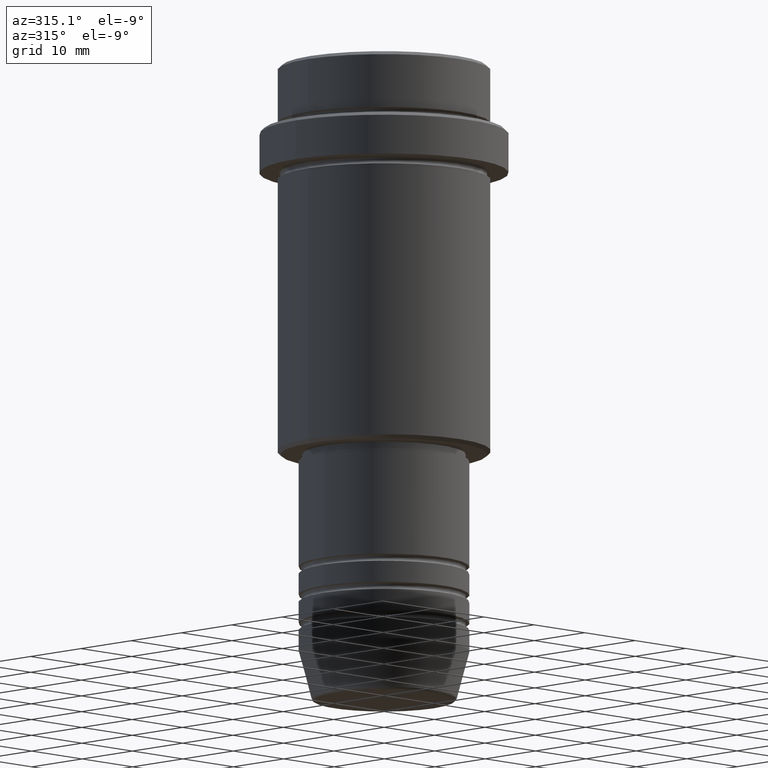
[diagram: clean part render]
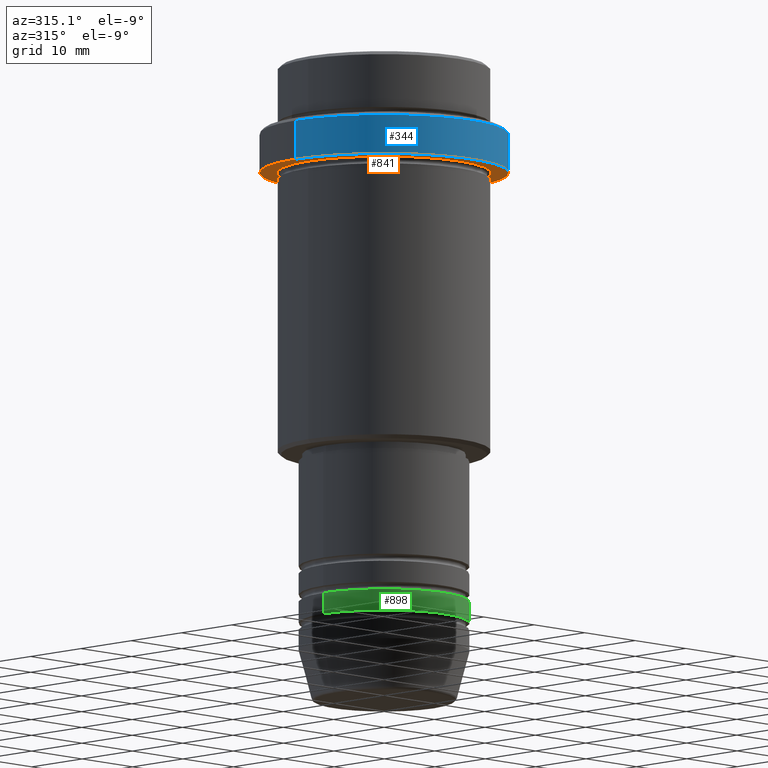
[diagram: same view with three faces highlighted in distinct colors, each labeled with its STEP entity id]
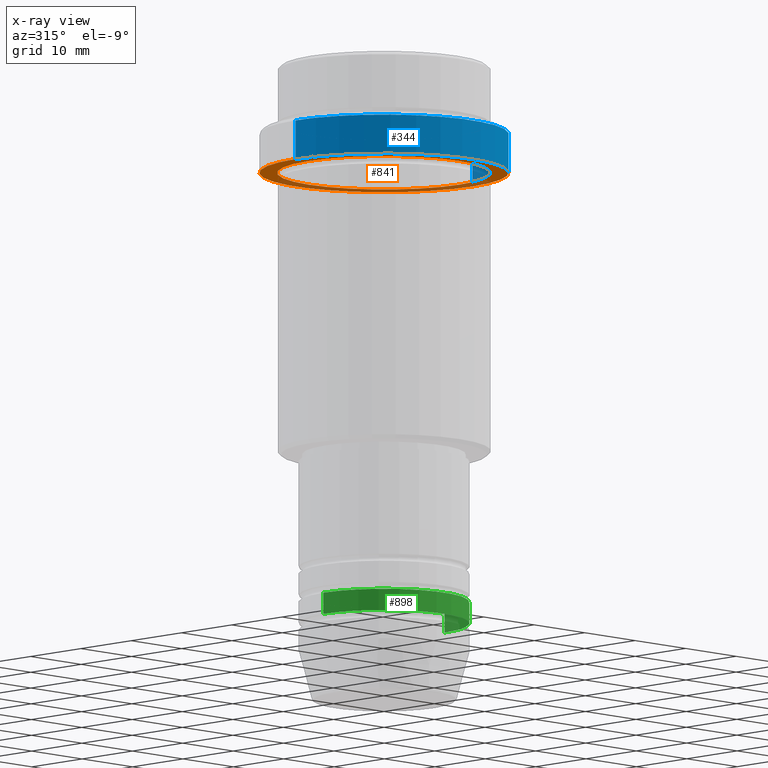
[diagram: x-ray of the same camera — body ghosted, the three highlighted faces saturated]
A machine part, auxiliary view with three faces highlighted in distinct colors.
The next image is the same camera in x-ray (body ghosted, the three faces saturated) — at least one of them is partly hidden behind the body in this view.
Their STEP definitions:

[orange] entity #841 — the highlighted planar face has unit normal (0, 0, -1).
#25 = ORIENTED_EDGE ( 'NONE', *, *, #409, .T. ) ;
#68 = DIRECTION ( 'NONE',  ( -0.000000000000000000, -0.000000000000000000, 1.000000000000000000 ) ) ;
#75 = DIRECTION ( 'NONE',  ( -0.000000000000000000, -0.000000000000000000, 1.000000000000000000 ) ) ;
#138 = FACE_BOUND ( 'NONE', #996, .T. ) ;
#200 = DIRECTION ( 'NONE',  ( -1.000000000000000000, 0.000000000000000000, 0.000000000000000000 ) ) ;
#219 = AXIS2_PLACEMENT_3D ( 'NONE', #352, #238, #661 ) ;
#224 = CIRCLE ( 'NONE', #564, 17.50000000000000000 ) ;
#238 = DIRECTION ( 'NONE',  ( 0.000000000000000000, 0.000000000000000000, -1.000000000000000000 ) ) ;
#352 = CARTESIAN_POINT ( 'NONE',  ( 0.000000000000000000, 17.50000000000000000, -15.00000000000000000 ) ) ;
#409 = EDGE_CURVE ( 'NONE', #426, #599, #1405, .T. ) ;
#412 = AXIS2_PLACEMENT_3D ( 'NONE', #493, #68, #503 ) ;
#426 = VERTEX_POINT ( 'NONE', #943 ) ;
#474 = CARTESIAN_POINT ( 'NONE',  ( -17.50000000000000000, 2.143131898507868248E-15, -15.00000000000000000 ) ) ;
#482 = DIRECTION ( 'NONE',  ( 1.000000000000000000, 0.000000000000000000, 0.000000000000000000 ) ) ;
#493 = CARTESIAN_POINT ( 'NONE',  ( 0.000000000000000000, 0.000000000000000000, -15.00000000000000000 ) ) ;
#503 = DIRECTION ( 'NONE',  ( -1.000000000000000000, 0.000000000000000000, 0.000000000000000000 ) ) ;
#517 = AXIS2_PLACEMENT_3D ( 'NONE', #1055, #75, #200 ) ;
#530 = ORIENTED_EDGE ( 'NONE', *, *, #1001, .T. ) ;
#533 = ORIENTED_EDGE ( 'NONE', *, *, #696, .F. ) ;
#564 = AXIS2_PLACEMENT_3D ( 'NONE', #803, #687, #917 ) ;
#573 = CARTESIAN_POINT ( 'NONE',  ( 17.50000000000000000, 0.000000000000000000, -15.00000000000000000 ) ) ;
#593 = CARTESIAN_POINT ( 'NONE',  ( 0.000000000000000000, 0.000000000000000000, -15.00000000000000000 ) ) ;
#599 = VERTEX_POINT ( 'NONE', #616 ) ;
#616 = CARTESIAN_POINT ( 'NONE',  ( 14.99999999999999467, 1.836970198721029194E-15, -15.00000000000000000 ) ) ;
#661 = DIRECTION ( 'NONE',  ( -1.000000000000000000, 0.000000000000000000, -0.000000000000000000 ) ) ;
#683 = EDGE_CURVE ( 'NONE', #986, #976, #1184, .T. ) ;
#687 = DIRECTION ( 'NONE',  ( -0.000000000000000000, -0.000000000000000000, 1.000000000000000000 ) ) ;
#696 = EDGE_CURVE ( 'NONE', #976, #986, #224, .T. ) ;
#768 = FACE_OUTER_BOUND ( 'NONE', #871, .T. ) ;
#803 = CARTESIAN_POINT ( 'NONE',  ( 0.000000000000000000, 0.000000000000000000, -15.00000000000000000 ) ) ;
#841 = ADVANCED_FACE ( 'NONE', ( #138, #768 ), #886, .T. ) ;
#871 = EDGE_LOOP ( 'NONE', ( #533, #1120 ) ) ;
#886 = PLANE ( 'NONE',  #219 ) ;
#917 = DIRECTION ( 'NONE',  ( 1.000000000000000000, 0.000000000000000000, 0.000000000000000000 ) ) ;
#943 = CARTESIAN_POINT ( 'NONE',  ( -14.99999999999999467, 0.000000000000000000, -15.00000000000000000 ) ) ;
#951 = CIRCLE ( 'NONE', #412, 14.99999999999999467 ) ;
#976 = VERTEX_POINT ( 'NONE', #573 ) ;
#986 = VERTEX_POINT ( 'NONE', #474 ) ;
#996 = EDGE_LOOP ( 'NONE', ( #25, #530 ) ) ;
#1001 = EDGE_CURVE ( 'NONE', #599, #426, #951, .T. ) ;
#1033 = DIRECTION ( 'NONE',  ( -0.000000000000000000, -0.000000000000000000, 1.000000000000000000 ) ) ;
#1055 = CARTESIAN_POINT ( 'NONE',  ( 0.000000000000000000, 0.000000000000000000, -15.00000000000000000 ) ) ;
#1120 = ORIENTED_EDGE ( 'NONE', *, *, #683, .F. ) ;
#1184 = CIRCLE ( 'NONE', #1361, 17.50000000000000000 ) ;
#1361 = AXIS2_PLACEMENT_3D ( 'NONE', #593, #1033, #482 ) ;
#1405 = CIRCLE ( 'NONE', #517, 14.99999999999999467 ) ;

[blue] entity #344 — the highlighted cylindrical surface (partial cylindrical patch) has radius 17.5 mm, axis along (-0, -0, 1).
#65 = FACE_OUTER_BOUND ( 'NONE', #1310, .T. ) ;
#123 = CARTESIAN_POINT ( 'NONE',  ( -17.50000000000000000, 2.143131898507868248E-15, 0.000000000000000000 ) ) ;
#246 = AXIS2_PLACEMENT_3D ( 'NONE', #701, #918, #489 ) ;
#274 = DIRECTION ( 'NONE',  ( -0.000000000000000000, -0.000000000000000000, 1.000000000000000000 ) ) ;
#321 = VERTEX_POINT ( 'NONE', #1023 ) ;
#344 = ADVANCED_FACE ( 'NONE', ( #65 ), #355, .T. ) ;
#355 = CYLINDRICAL_SURFACE ( 'NONE', #603, 17.50000000000000000 ) ;
#474 = CARTESIAN_POINT ( 'NONE',  ( -17.50000000000000000, 2.143131898507868248E-15, -15.00000000000000000 ) ) ;
#482 = DIRECTION ( 'NONE',  ( 1.000000000000000000, 0.000000000000000000, 0.000000000000000000 ) ) ;
#489 = DIRECTION ( 'NONE',  ( 1.000000000000000000, 0.000000000000000000, 0.000000000000000000 ) ) ;
#501 = CARTESIAN_POINT ( 'NONE',  ( 0.000000000000000000, 0.000000000000000000, 0.000000000000000000 ) ) ;
#573 = CARTESIAN_POINT ( 'NONE',  ( 17.50000000000000000, 0.000000000000000000, -15.00000000000000000 ) ) ;
#593 = CARTESIAN_POINT ( 'NONE',  ( 0.000000000000000000, 0.000000000000000000, -15.00000000000000000 ) ) ;
#603 = AXIS2_PLACEMENT_3D ( 'NONE', #501, #274, #676 ) ;
#609 = DIRECTION ( 'NONE',  ( -0.000000000000000000, -0.000000000000000000, 1.000000000000000000 ) ) ;
#676 = DIRECTION ( 'NONE',  ( 1.000000000000000000, 0.000000000000000000, 0.000000000000000000 ) ) ;
#683 = EDGE_CURVE ( 'NONE', #986, #976, #1184, .T. ) ;
#701 = CARTESIAN_POINT ( 'NONE',  ( 0.000000000000000000, 0.000000000000000000, -9.499999999999971578 ) ) ;
#716 = LINE ( 'NONE', #797, #832 ) ;
#780 = LINE ( 'NONE', #123, #1337 ) ;
#797 = CARTESIAN_POINT ( 'NONE',  ( 17.50000000000000000, 0.000000000000000000, 0.000000000000000000 ) ) ;
#832 = VECTOR ( 'NONE', #609, 1000.000000000000000 ) ;
#843 = ORIENTED_EDGE ( 'NONE', *, *, #1117, .T. ) ;
#918 = DIRECTION ( 'NONE',  ( 0.000000000000000000, 0.000000000000000000, -1.000000000000000000 ) ) ;
#957 = ORIENTED_EDGE ( 'NONE', *, *, #683, .T. ) ;
#976 = VERTEX_POINT ( 'NONE', #573 ) ;
#986 = VERTEX_POINT ( 'NONE', #474 ) ;
#1023 = CARTESIAN_POINT ( 'NONE',  ( 17.50000000000000000, 0.000000000000000000, -9.499999999999971578 ) ) ;
#1033 = DIRECTION ( 'NONE',  ( -0.000000000000000000, -0.000000000000000000, 1.000000000000000000 ) ) ;
#1047 = CIRCLE ( 'NONE', #246, 17.50000000000000000 ) ;
#1117 = EDGE_CURVE ( 'NONE', #976, #321, #716, .T. ) ;
#1166 = ORIENTED_EDGE ( 'NONE', *, *, #1268, .F. ) ;
#1184 = CIRCLE ( 'NONE', #1361, 17.50000000000000000 ) ;
#1267 = VERTEX_POINT ( 'NONE', #1331 ) ;
#1268 = EDGE_CURVE ( 'NONE', #986, #1267, #780, .T. ) ;
#1310 = EDGE_LOOP ( 'NONE', ( #1166, #957, #843, #1365 ) ) ;
#1320 = DIRECTION ( 'NONE',  ( -0.000000000000000000, -0.000000000000000000, 1.000000000000000000 ) ) ;
#1331 = CARTESIAN_POINT ( 'NONE',  ( -17.50000000000000000, 2.143131898507868248E-15, -9.499999999999971578 ) ) ;
#1337 = VECTOR ( 'NONE', #1320, 1000.000000000000000 ) ;
#1361 = AXIS2_PLACEMENT_3D ( 'NONE', #593, #1033, #482 ) ;
#1365 = ORIENTED_EDGE ( 'NONE', *, *, #1372, .T. ) ;
#1372 = EDGE_CURVE ( 'NONE', #321, #1267, #1047, .T. ) ;

[green] entity #898 — the highlighted cylindrical surface (partial cylindrical patch) has radius 12 mm, axis along (-0, -0, 1).
#8 = CIRCLE ( 'NONE', #1316, 12.00000000000000000 ) ;
#34 = CIRCLE ( 'NONE', #337, 12.00000000000000000 ) ;
#52 = CARTESIAN_POINT ( 'NONE',  ( 12.00000000000000000, 0.000000000000000000, 0.000000000000000000 ) ) ;
#56 = DIRECTION ( 'NONE',  ( -0.000000000000000000, -0.000000000000000000, 1.000000000000000000 ) ) ;
#135 = EDGE_CURVE ( 'NONE', #1161, #242, #1050, .T. ) ;
#239 = EDGE_CURVE ( 'NONE', #752, #242, #8, .T. ) ;
#242 = VERTEX_POINT ( 'NONE', #522 ) ;
#245 = VECTOR ( 'NONE', #961, 1000.000000000000000 ) ;
#286 = EDGE_CURVE ( 'NONE', #846, #1161, #34, .T. ) ;
#337 = AXIS2_PLACEMENT_3D ( 'NONE', #814, #364, #1013 ) ;
#343 = CYLINDRICAL_SURFACE ( 'NONE', #619, 12.00000000000000000 ) ;
#364 = DIRECTION ( 'NONE',  ( -0.000000000000000000, -0.000000000000000000, 1.000000000000000000 ) ) ;
#390 = EDGE_CURVE ( 'NONE', #846, #752, #741, .T. ) ;
#466 = CARTESIAN_POINT ( 'NONE',  ( 0.000000000000000000, 0.000000000000000000, 0.000000000000000000 ) ) ;
#510 = CARTESIAN_POINT ( 'NONE',  ( 12.00000000000000000, 0.000000000000000000, -78.99999999999990052 ) ) ;
#522 = CARTESIAN_POINT ( 'NONE',  ( 12.00000000000000000, 0.000000000000000000, -75.99999999999990052 ) ) ;
#619 = AXIS2_PLACEMENT_3D ( 'NONE', #466, #1326, #775 ) ;
#631 = CARTESIAN_POINT ( 'NONE',  ( -12.00000000000000000, 1.469576158976823947E-15, 0.000000000000000000 ) ) ;
#730 = DIRECTION ( 'NONE',  ( -0.000000000000000000, -0.000000000000000000, 1.000000000000000000 ) ) ;
#741 = LINE ( 'NONE', #631, #245 ) ;
#752 = VERTEX_POINT ( 'NONE', #1258 ) ;
#775 = DIRECTION ( 'NONE',  ( 1.000000000000000000, 0.000000000000000000, 0.000000000000000000 ) ) ;
#814 = CARTESIAN_POINT ( 'NONE',  ( 0.000000000000000000, 0.000000000000000000, -78.99999999999990052 ) ) ;
#846 = VERTEX_POINT ( 'NONE', #1329 ) ;
#889 = FACE_OUTER_BOUND ( 'NONE', #1192, .T. ) ;
#898 = ADVANCED_FACE ( 'NONE', ( #889 ), #343, .T. ) ;
#961 = DIRECTION ( 'NONE',  ( -0.000000000000000000, -0.000000000000000000, 1.000000000000000000 ) ) ;
#990 = CARTESIAN_POINT ( 'NONE',  ( 0.000000000000000000, 0.000000000000000000, -75.99999999999990052 ) ) ;
#1013 = DIRECTION ( 'NONE',  ( 1.000000000000000000, 0.000000000000000000, 0.000000000000000000 ) ) ;
#1042 = ORIENTED_EDGE ( 'NONE', *, *, #239, .F. ) ;
#1050 = LINE ( 'NONE', #52, #1072 ) ;
#1072 = VECTOR ( 'NONE', #56, 1000.000000000000000 ) ;
#1161 = VERTEX_POINT ( 'NONE', #510 ) ;
#1175 = DIRECTION ( 'NONE',  ( 1.000000000000000000, 0.000000000000000000, 0.000000000000000000 ) ) ;
#1192 = EDGE_LOOP ( 'NONE', ( #1208, #1296, #1400, #1042 ) ) ;
#1208 = ORIENTED_EDGE ( 'NONE', *, *, #390, .F. ) ;
#1258 = CARTESIAN_POINT ( 'NONE',  ( -12.00000000000000000, 1.469576158976823947E-15, -75.99999999999990052 ) ) ;
#1296 = ORIENTED_EDGE ( 'NONE', *, *, #286, .T. ) ;
#1316 = AXIS2_PLACEMENT_3D ( 'NONE', #990, #730, #1175 ) ;
#1326 = DIRECTION ( 'NONE',  ( -0.000000000000000000, -0.000000000000000000, 1.000000000000000000 ) ) ;
#1329 = CARTESIAN_POINT ( 'NONE',  ( -12.00000000000000000, 1.469576158976823947E-15, -78.99999999999990052 ) ) ;
#1400 = ORIENTED_EDGE ( 'NONE', *, *, #135, .T. ) ;